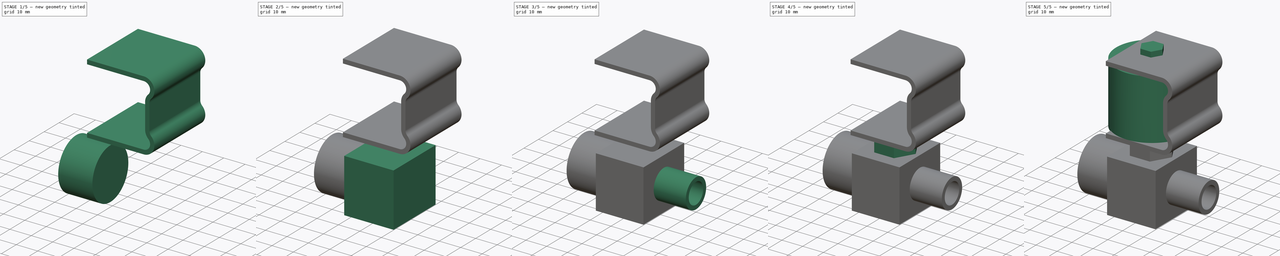
[diagram: build sequence overview — one tinted view per stage of 5, left to right]
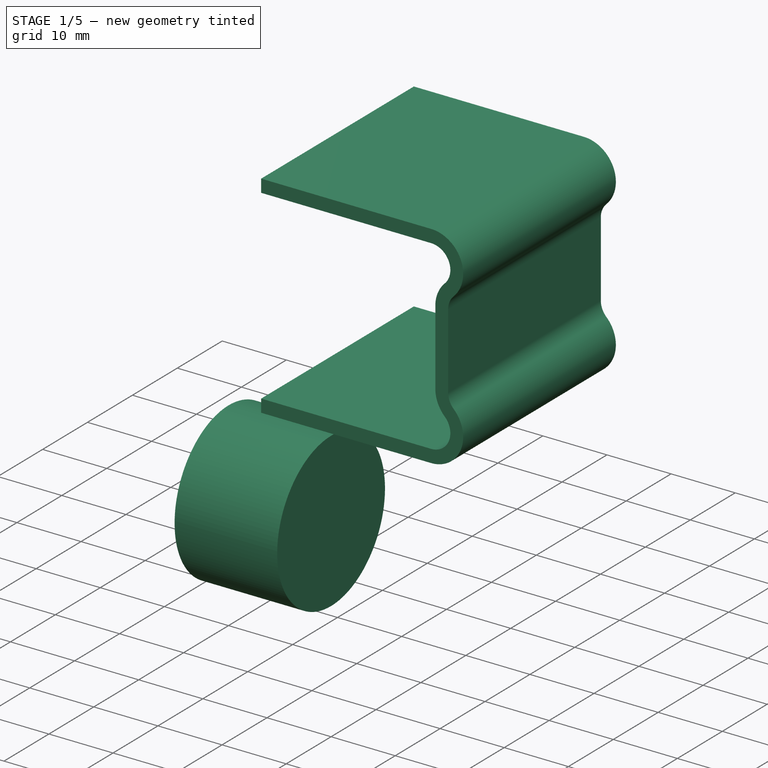
[diagram: stage 1 of 5 — iso view after this stage's code; geometry added in this stage tinted green]
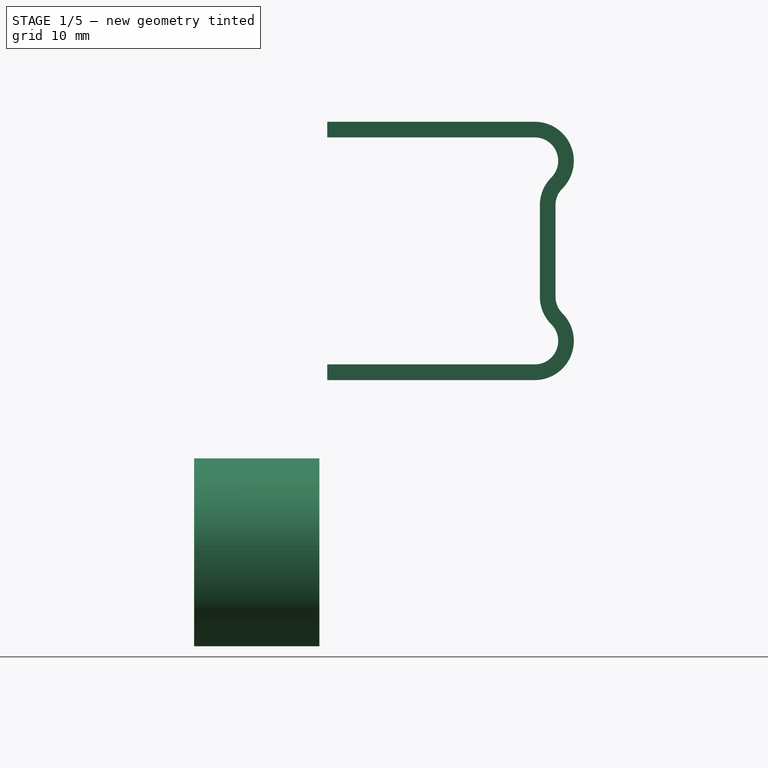
[diagram: stage 1 of 5 — front view after this stage's code; geometry added in this stage tinted green]
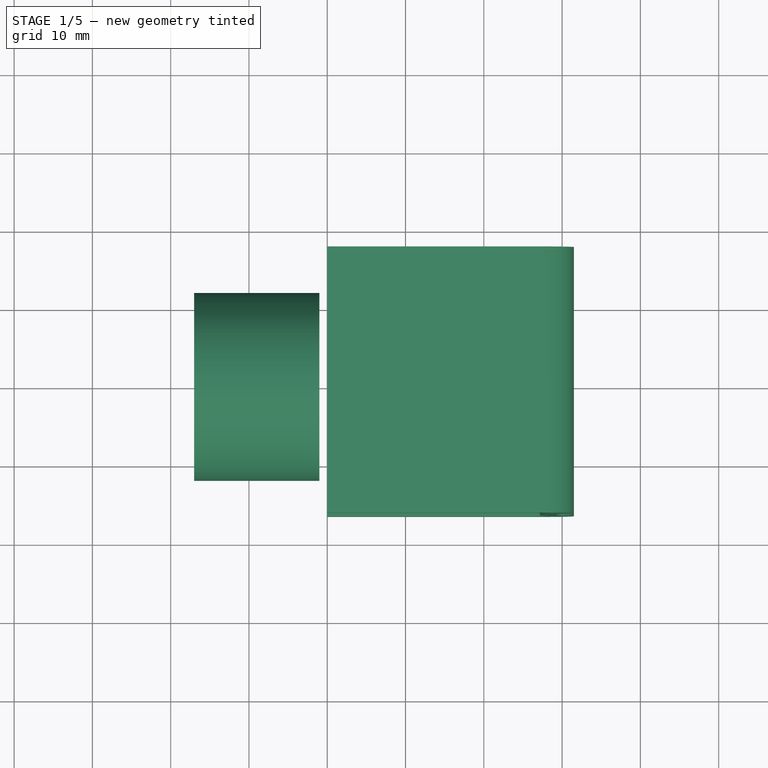
[diagram: stage 1 of 5 — top view after this stage's code; geometry added in this stage tinted green]
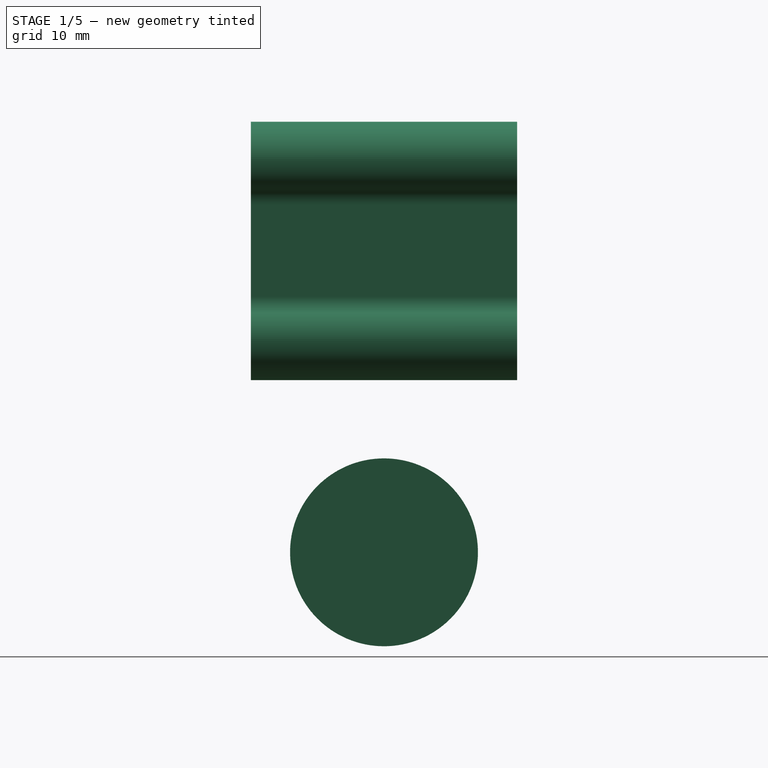
[diagram: stage 1 of 5 — right view after this stage's code; geometry added in this stage tinted green]
FCSTD DOCUMENT  (FreeCAD 0.16R6712 (Git))
Label: fl_205_cut_of_solenoid
License: All rights reserved
LicenseURL: http://en.wikipedia.org/wiki/All_rights_reserved
objects: Sketcher::SketchObject×5, PartDesign::Pad×5, Part::Cylinder×4, Part::MultiFuse×3, Part::Cut×2, Part::Box×1
note: 25 computed .brp shape members not serialized (recipe doc carries the construction recipe); baked Part::Feature solids carry a one-line shape summary decoded from their .brp

FEATURE [Part::Cylinder] Cylinder
  Angle = 360
  Height = 16
  Placement = pos=(-27,0,0) rot=(0,1,0;1.5708rad)
  Radius = 12
FEATURE [Part::Cylinder] Cylinder002
  Angle = 360
  Height = 16
  Placement = pos=(-27,0,0) rot=(0,1,0;1.5708rad)
  Radius = 7.5
FEATURE [PartDesign::Pad] Pad004
  Length = 34
  Length2 = 100
  Placement = pos=(0,17,0) rot=(-1,0,0;4.71239rad)
  Sketch = -> Sketch004
  Type = 0
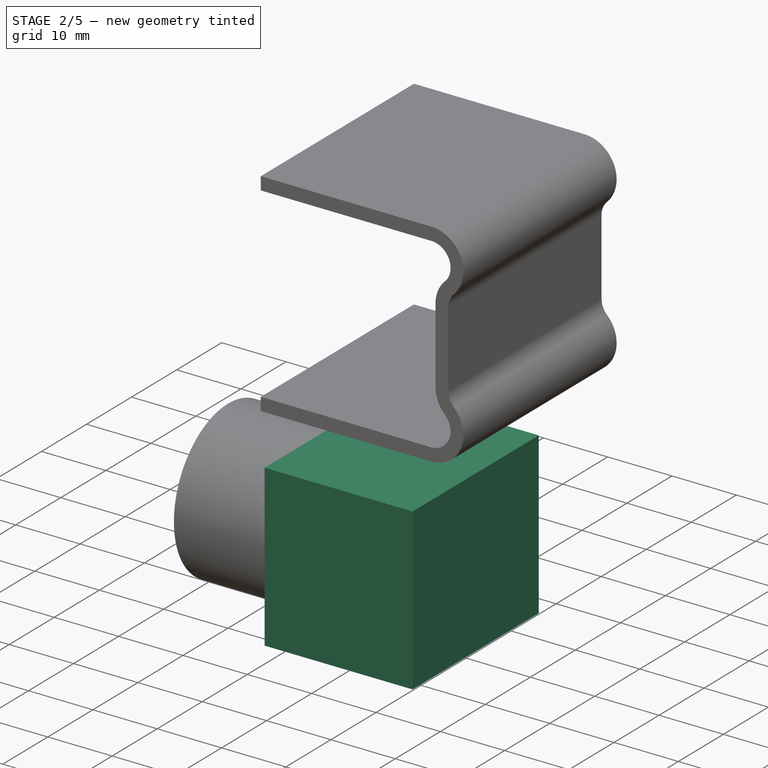
[diagram: stage 2 of 5 — iso view after this stage's code; geometry added in this stage tinted green]
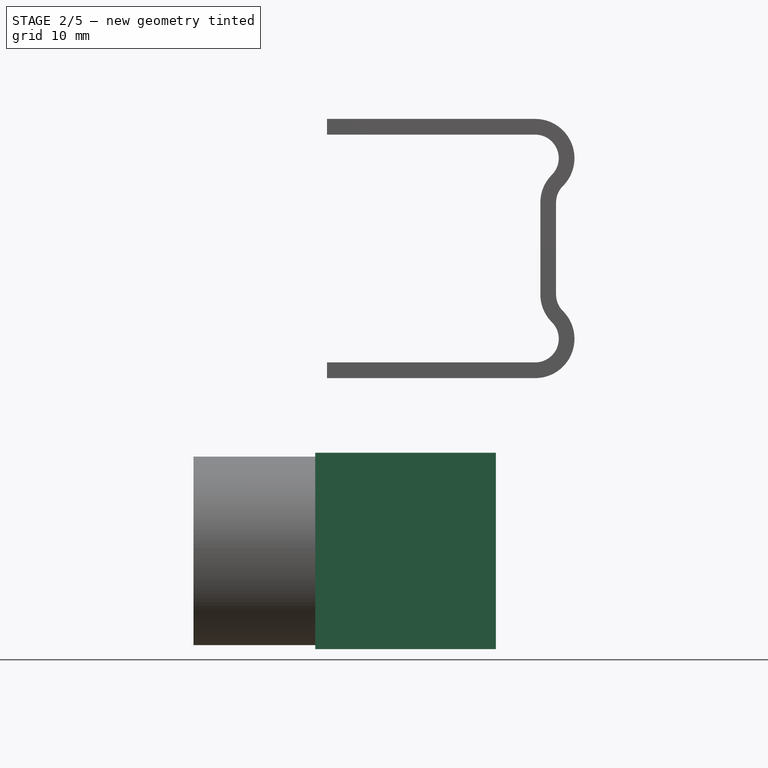
[diagram: stage 2 of 5 — front view after this stage's code; geometry added in this stage tinted green]
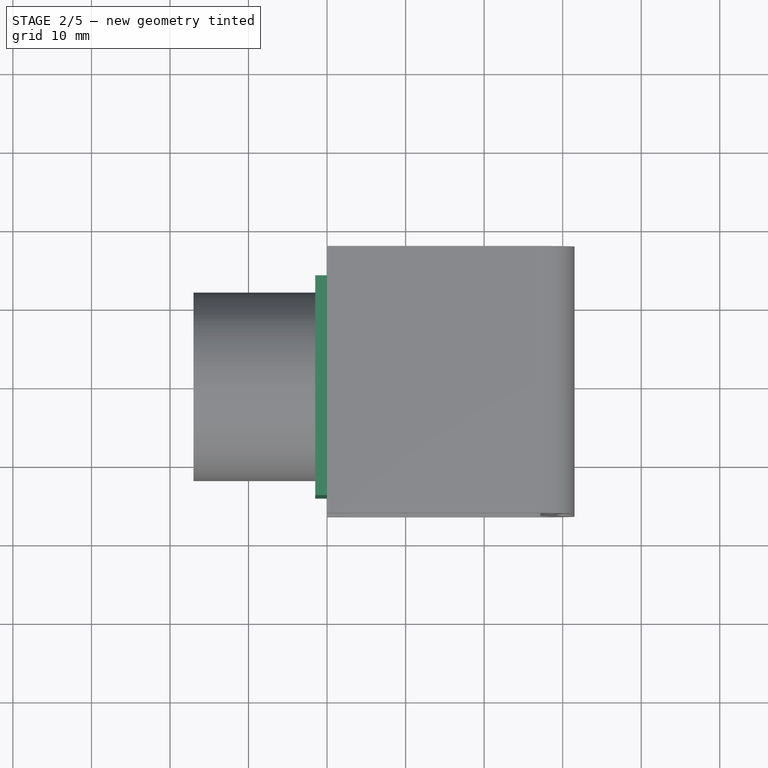
[diagram: stage 2 of 5 — top view after this stage's code; geometry added in this stage tinted green]
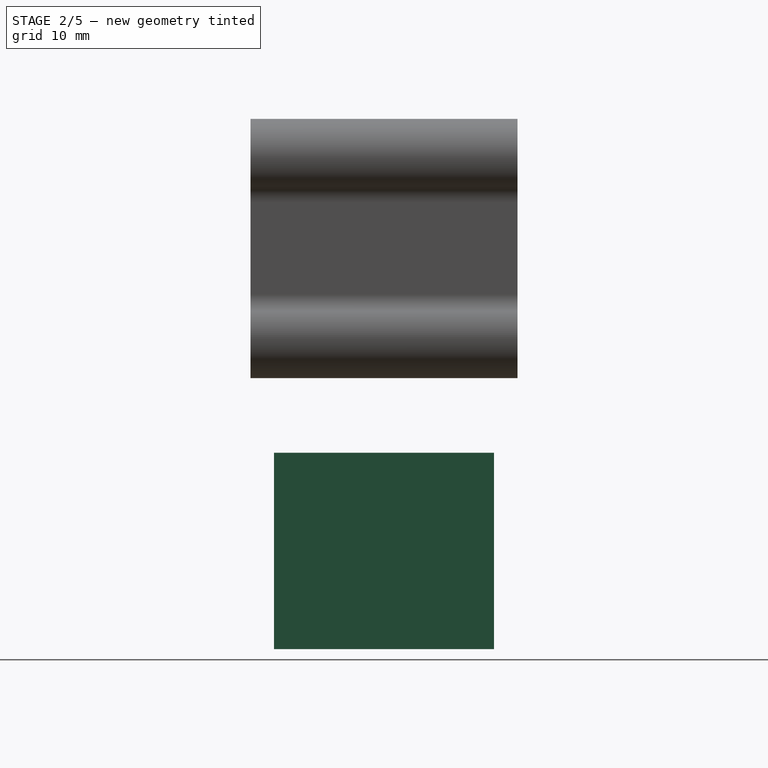
[diagram: stage 2 of 5 — right view after this stage's code; geometry added in this stage tinted green]
FEATURE [Part::Box] Box  label="Cube"
  Height = 25
  Length = 23
  Placement = pos=(-11.5,-14,-12.5) rot=(0,0,1;0rad)
  Width = 28
FEATURE [Part::Cut] Cut
  Base = -> Cylinder
  Tool = -> Cylinder002
FEATURE [Part::MultiFuse] Fusion
  Shapes = -> [Box,Cut]
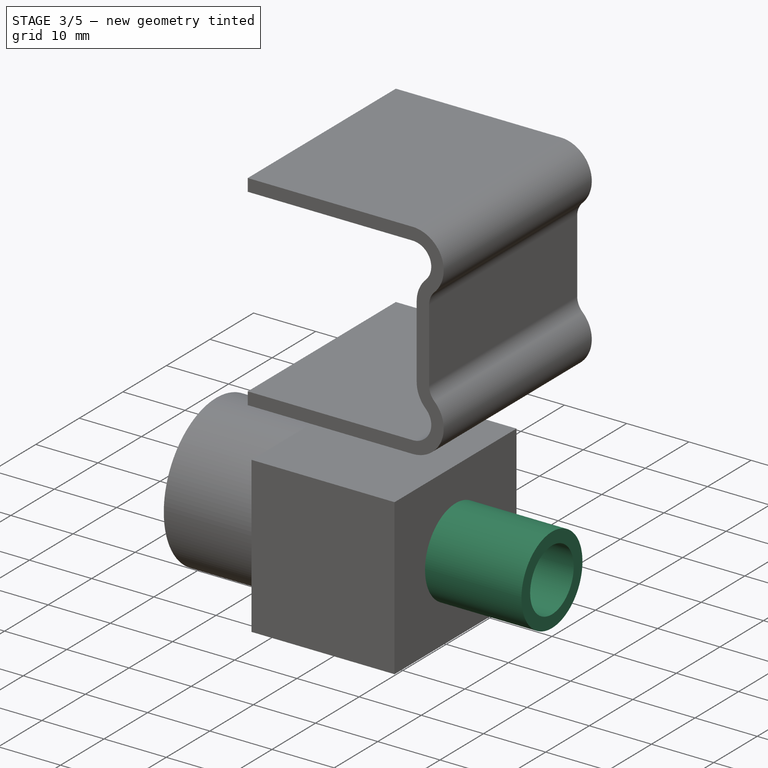
[diagram: stage 3 of 5 — iso view after this stage's code; geometry added in this stage tinted green]
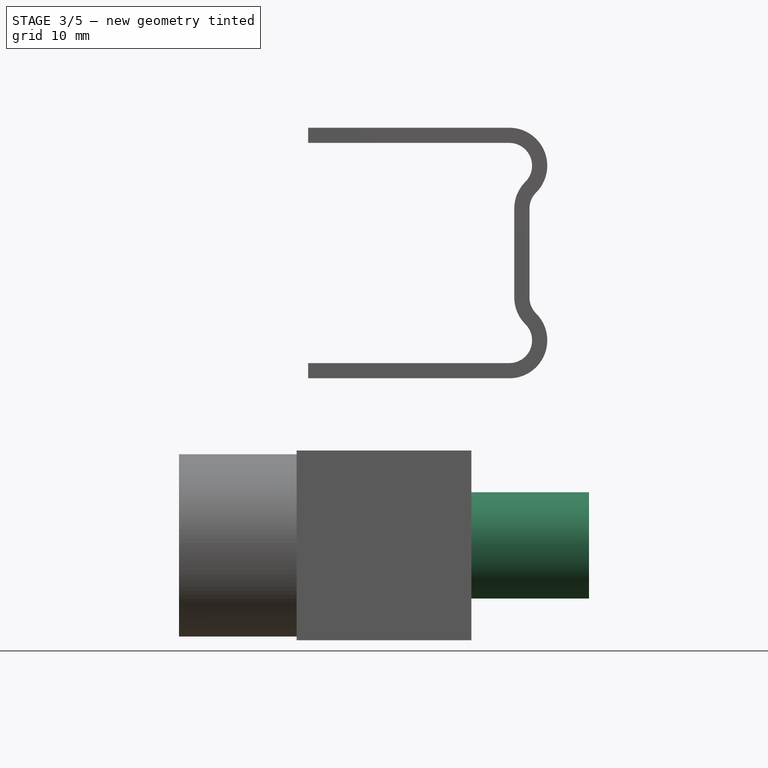
[diagram: stage 3 of 5 — front view after this stage's code; geometry added in this stage tinted green]
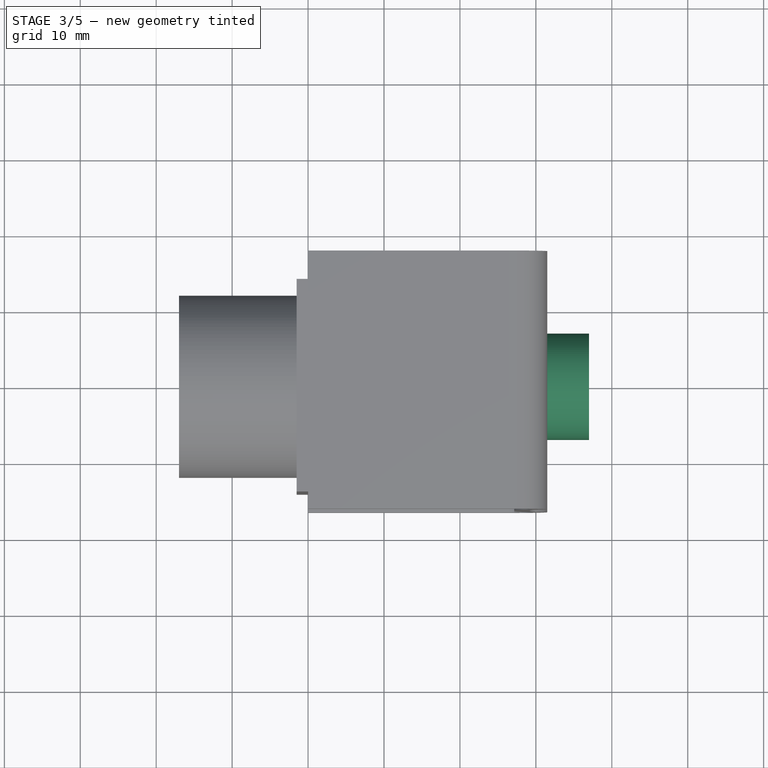
[diagram: stage 3 of 5 — top view after this stage's code; geometry added in this stage tinted green]
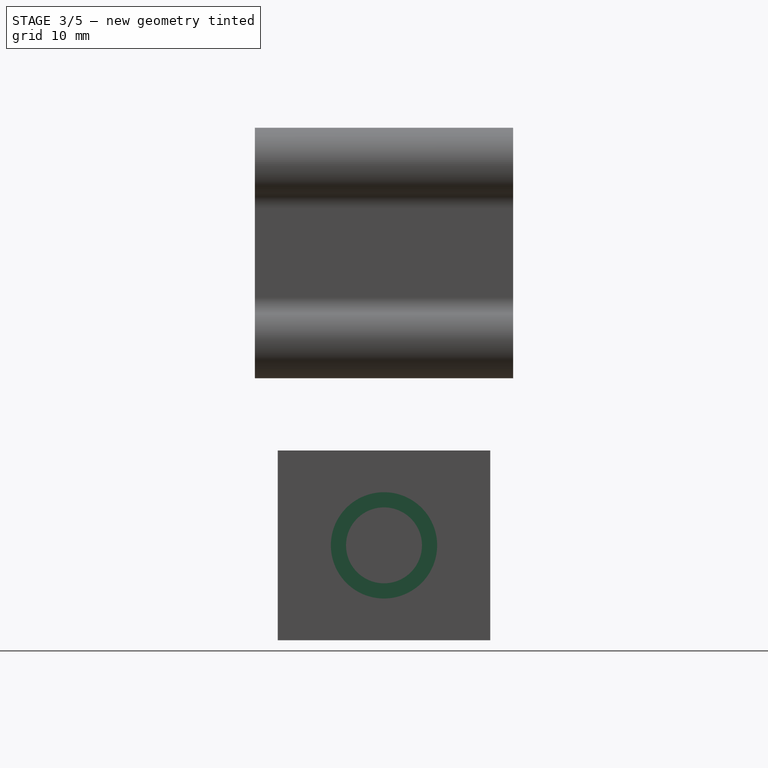
[diagram: stage 3 of 5 — right view after this stage's code; geometry added in this stage tinted green]
FEATURE [Part::Cylinder] Cylinder001
  Angle = 360
  Height = 16
  Placement = pos=(11,0,0) rot=(0,1,0;1.5708rad)
  Radius = 5
FEATURE [Part::Cylinder] Cylinder003
  Angle = 360
  Height = 16
  Placement = pos=(11,0,0) rot=(0,1,0;1.5708rad)
  Radius = 7
FEATURE [Part::Cut] Cut001
  Base = -> Cylinder003
  Tool = -> Cylinder001
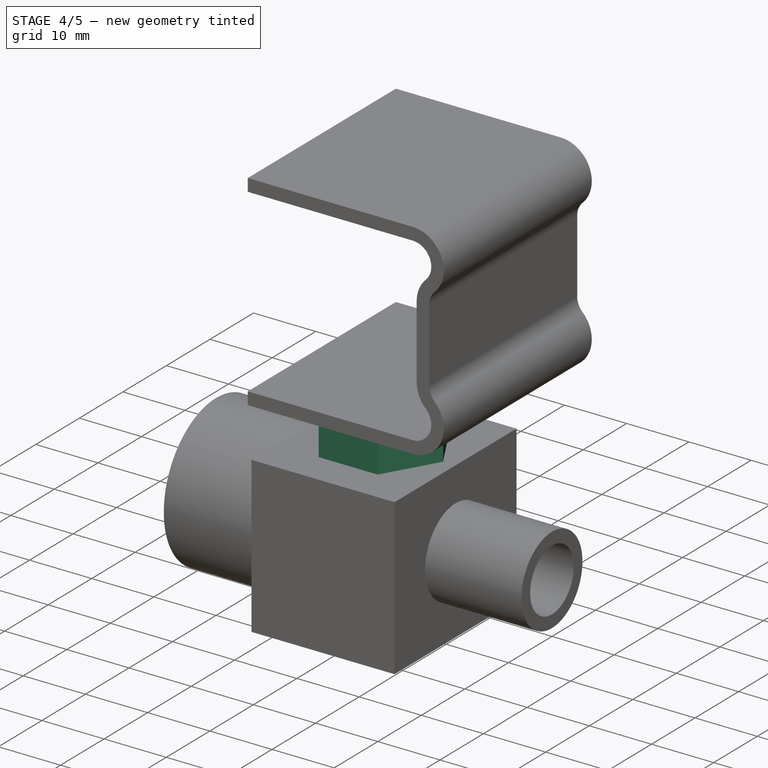
[diagram: stage 4 of 5 — iso view after this stage's code; geometry added in this stage tinted green]
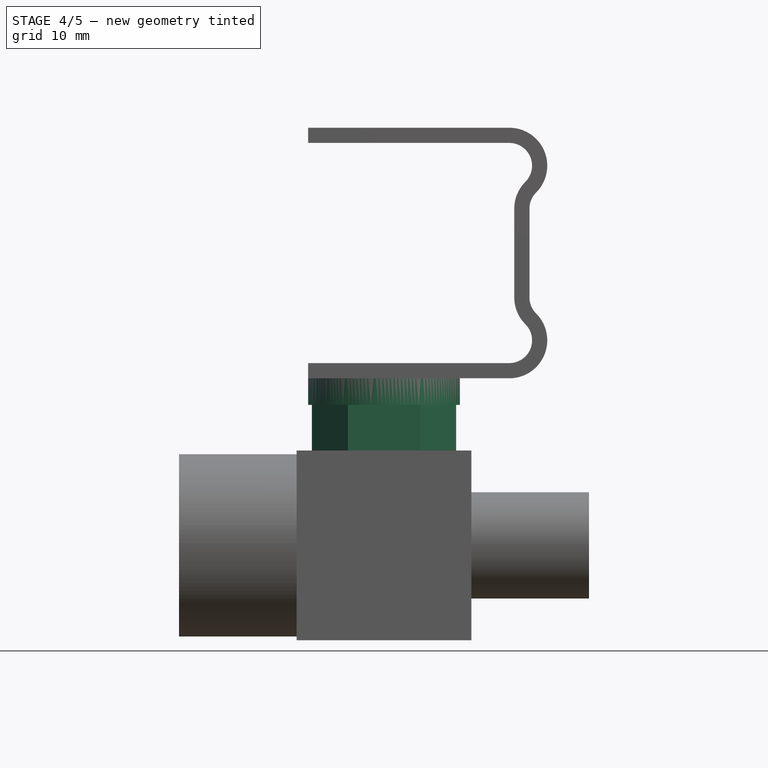
[diagram: stage 4 of 5 — front view after this stage's code; geometry added in this stage tinted green]
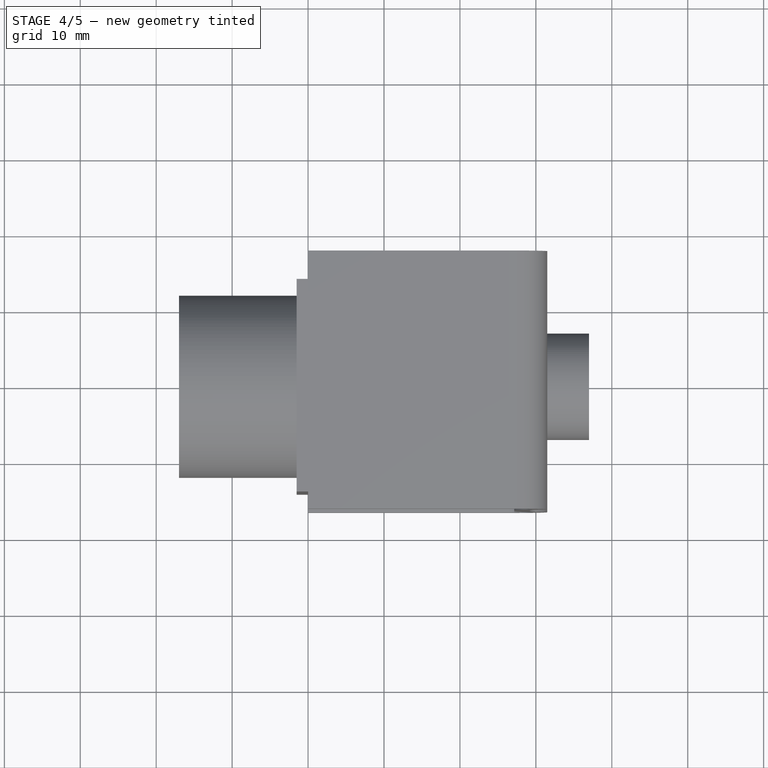
[diagram: stage 4 of 5 — top view after this stage's code; geometry added in this stage tinted green]
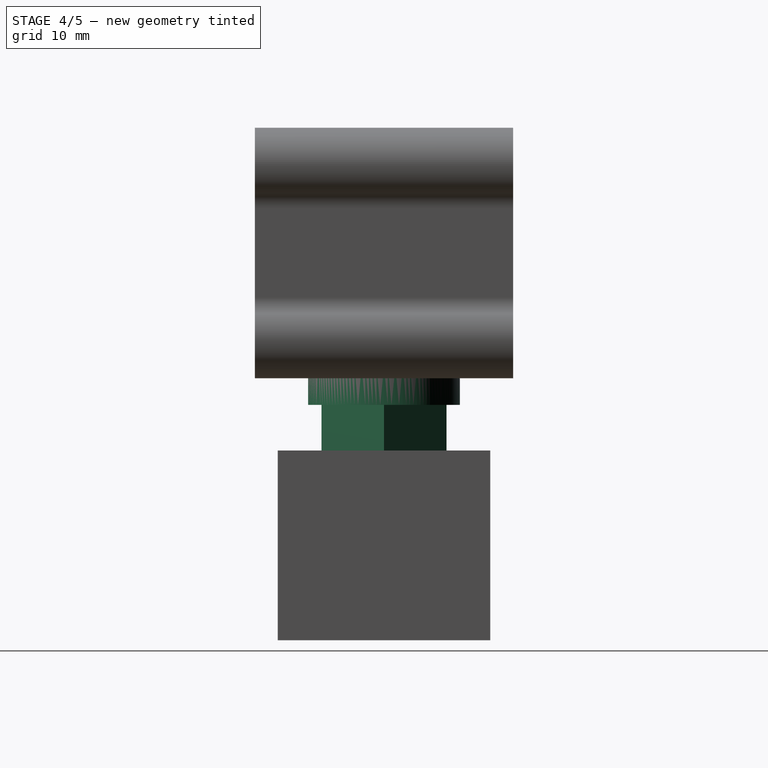
[diagram: stage 4 of 5 — right view after this stage's code; geometry added in this stage tinted green]
FEATURE [Part::MultiFuse] Fusion001
  Shapes = -> [Fusion,Cut001]
FEATURE [Sketcher::SketchObject] Sketch
  Placement = pos=(0,0,12.5) rot=(0,0,1;0rad)
  Support = -> Fusion001 [Face4]
  sketch-geometry (7):
    g0: LineSegment StartX=4.75 StartY=8.22724 StartZ=0 EndX=-4.75 EndY=8.22724 EndZ=0
    g1: LineSegment StartX=-4.75 StartY=8.22724 StartZ=0 EndX=-9.5 EndY=3e-12 EndZ=0
    g2: LineSegment StartX=-9.5 StartY=3e-12 StartZ=0 EndX=-4.75 EndY=-8.22724 EndZ=0
    g3: LineSegment StartX=-4.75 StartY=-8.22724 StartZ=0 EndX=4.75 EndY=-8.22724 EndZ=0
    g4: LineSegment StartX=4.75 StartY=-8.22724 StartZ=0 EndX=9.5 EndY=3e-12 EndZ=0
    g5: LineSegment StartX=9.5 StartY=3e-12 StartZ=0 EndX=4.75 EndY=8.22724 EndZ=0
    g6: Circle [constr] CenterX=0 CenterY=0 CenterZ=0 NormalX=0 NormalY=0 NormalZ=1 Radius=9.5
  constraints (16):
    c: Coincident(g0,g1)
    c: Coincident(g1,g2)
    c: Coincident(g2,g3)
    c: Coincident(g3,g4)
    c: Coincident(g4,g5)
    c: Coincident(g5,g0)
    c: Equal(g0, g1-g5) x5
    c: PointOnObject(g0,g6)
    c: PointOnObject(g1,g6)
    c: PointOnObject(g2,g6)
    c: PointOnObject(g3,g6)
    c: PointOnObject(g4,g6)
    c: PointOnObject(g5,g6)
    c: Coincident(g6,g-1)
    c: Horizontal(g0)
    c: Radius(g6) = 9.5
FEATURE [PartDesign::Pad] Pad
  Length = 6
  Length2 = 100
  Sketch = -> Sketch
  Type = 0
FEATURE [Sketcher::SketchObject] Sketch001
  Placement = pos=(0,0,18.5) rot=(0,0,1;0rad)
  Support = -> Pad [Face1]
  sketch-geometry (1):
    g0: Circle CenterX=0 CenterY=0 CenterZ=0 NormalX=0 NormalY=0 NormalZ=1 Radius=10
  constraints (2):
    c: Coincident(g0,g-1)
    c: Radius(g0) = 10
FEATURE [PartDesign::Pad] Pad001
  Length = 5
  Length2 = 100
  Sketch = -> Sketch001
  Type = 0
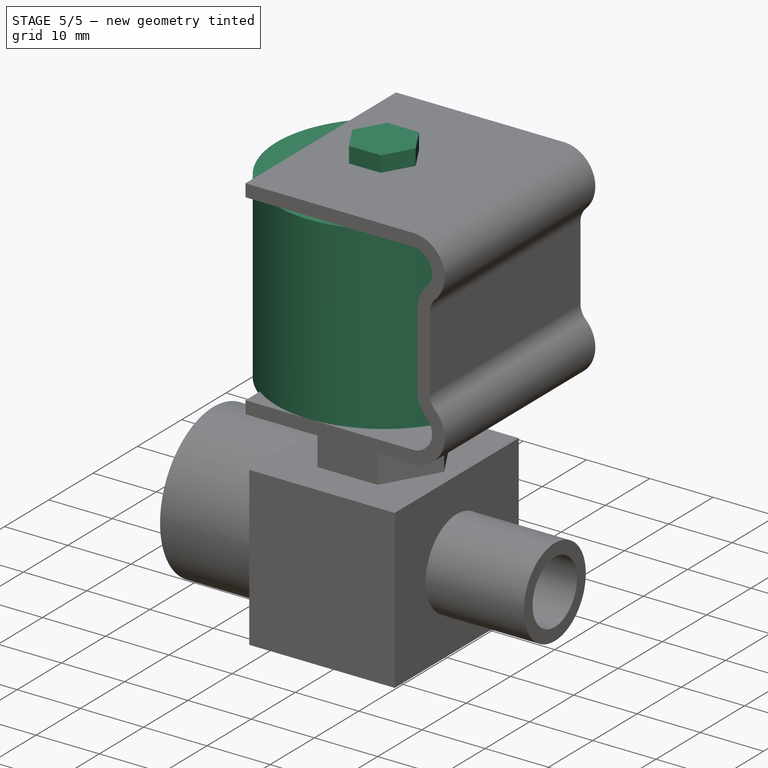
[diagram: stage 5 of 5 — iso view after this stage's code; geometry added in this stage tinted green]
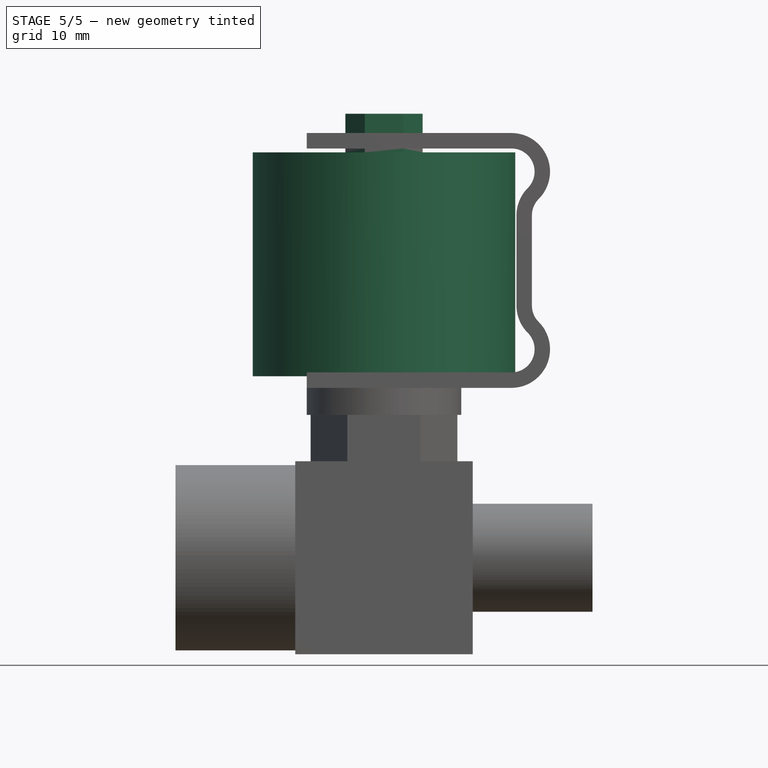
[diagram: stage 5 of 5 — front view after this stage's code; geometry added in this stage tinted green]
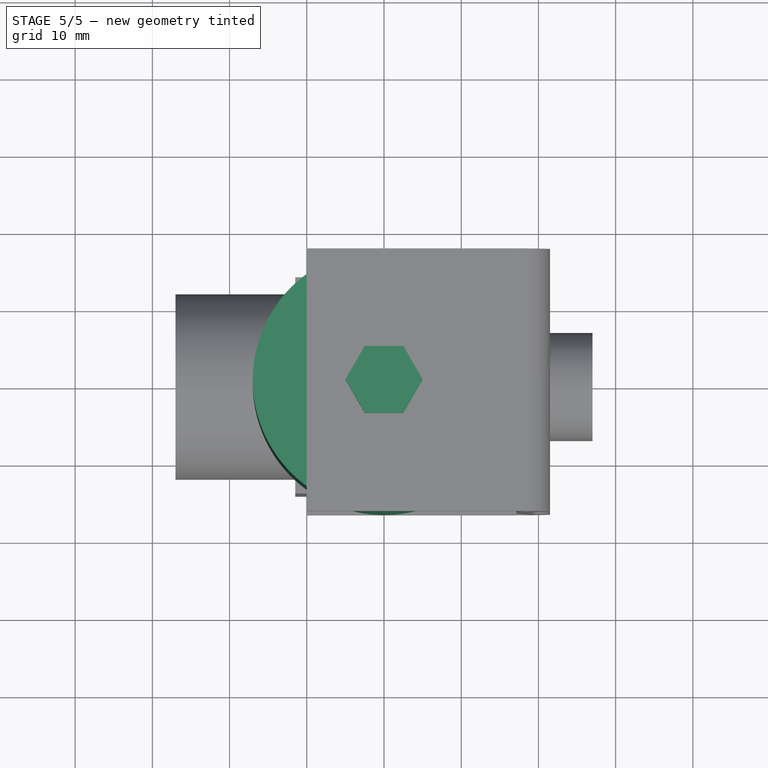
[diagram: stage 5 of 5 — top view after this stage's code; geometry added in this stage tinted green]
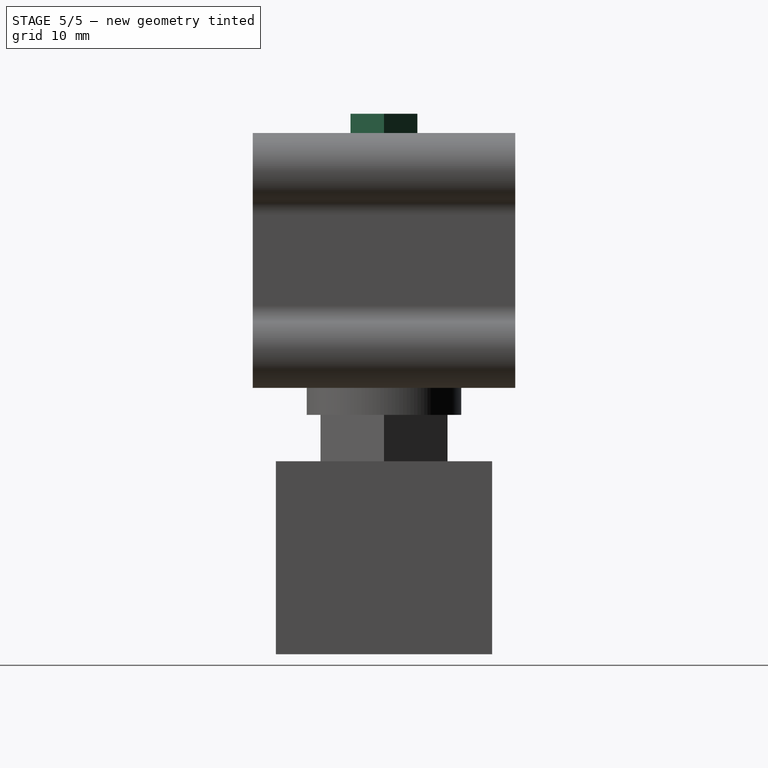
[diagram: stage 5 of 5 — right view after this stage's code; geometry added in this stage tinted green]
FEATURE [Sketcher::SketchObject] Sketch002
  Placement = pos=(0,0,23.5) rot=(0,0,1;0rad)
  Support = -> Pad001 [Face21]
  sketch-geometry (1):
    g0: Circle CenterX=0 CenterY=0 CenterZ=0 NormalX=0 NormalY=0 NormalZ=1 Radius=17
  constraints (2):
    c: Coincident(g0,g-1)
    c: Radius(g0) = 17
FEATURE [PartDesign::Pad] Pad002
  Length = 29
  Length2 = 100
  Sketch = -> Sketch002
  Type = 0
FEATURE [Sketcher::SketchObject] Sketch004
  Placement = pos=(0,17,0) rot=(-1,0,0;4.71239rad)
  sketch-geometry (24):
    g0: LineSegment StartX=-10 StartY=55 StartZ=0 EndX=16.5 EndY=55 EndZ=0
    g1: LineSegment StartX=-10 StartY=55 StartZ=0 EndX=-10 EndY=53 EndZ=0
    g2: LineSegment StartX=-10 StartY=53 StartZ=0 EndX=16.5 EndY=53 EndZ=0
    g3: LineSegment [constr] StartX=-10 StartY=53 StartZ=0 EndX=-10 EndY=24 EndZ=0
    g4: LineSegment StartX=-10 StartY=24 StartZ=0 EndX=16.5 EndY=24 EndZ=0
    g5: LineSegment StartX=-10 StartY=24 StartZ=0 EndX=-10 EndY=22 EndZ=0
    g6: LineSegment StartX=-10 StartY=22 StartZ=0 EndX=16.5 EndY=22 EndZ=0
    g7: LineSegment [constr] StartX=16.5 StartY=53 StartZ=0 EndX=16.5 EndY=50 EndZ=0
    g8: LineSegment [constr] StartX=16.5 StartY=24 StartZ=0 EndX=16.5 EndY=27 EndZ=0
    g9: LineSegment [constr] StartX=16.5 StartY=50 StartZ=0 EndX=22.1569 EndY=44.3431 EndZ=0
    g10: LineSegment [constr] StartX=16.5 StartY=27 StartZ=0 EndX=22.1569 EndY=32.6569 EndZ=0
    g11: ArcOfCircle CenterX=16.5 CenterY=50 CenterZ=0 NormalX=0 NormalY=0 NormalZ=1 Radius=5 StartAngle=5.49779 EndAngle=7.85398
    g12: ArcOfCircle CenterX=16.5 CenterY=50 CenterZ=0 NormalX=0 NormalY=0 NormalZ=1 Radius=3 StartAngle=5.49779 EndAngle=7.85398
    g13: ArcOfCircle CenterX=16.5 CenterY=27 CenterZ=0 NormalX=0 NormalY=0 NormalZ=1 Radius=5 StartAngle=4.71239 EndAngle=7.06858
    g14: ArcOfCircle CenterX=16.5 CenterY=27 CenterZ=0 NormalX=0 NormalY=0 NormalZ=1 Radius=3 StartAngle=4.71239 EndAngle=7.06858
    g15: LineSegment StartX=17.1569 StartY=44.3431 StartZ=0 EndX=17.1569 EndY=32.6569 EndZ=0
    g16: LineSegment StartX=19.1569 StartY=44.3431 StartZ=0 EndX=19.1569 EndY=32.6569 EndZ=0
    g17: LineSegment [constr] StartX=17.1569 StartY=44.3431 StartZ=0 EndX=19.1569 EndY=44.3431 EndZ=0
    g18: ArcOfCircle CenterX=22.1569 CenterY=44.3431 CenterZ=0 NormalX=0 NormalY=0 NormalZ=1 Radius=5 StartAngle=2.35619 EndAngle=3.14159
    g19: ArcOfCircle CenterX=22.1569 CenterY=44.3431 CenterZ=0 NormalX=0 NormalY=0 NormalZ=1 Radius=3 StartAngle=2.35619 EndAngle=3.14159
    g20: LineSegment [constr] StartX=19.1569 StartY=44.3431 StartZ=0 EndX=22.1569 EndY=44.3431 EndZ=0
    g21: LineSegment [constr] StartX=19.1569 StartY=32.6569 StartZ=0 EndX=22.1569 EndY=32.6569 EndZ=0
    g22: ArcOfCircle CenterX=22.1457 CenterY=32.6522 CenterZ=0 NormalX=0 NormalY=0 NormalZ=1 Radius=2.98883 StartAngle=3.14004 EndAngle=3.92854
    g23: ArcOfCircle CenterX=22.1569 CenterY=32.6569 CenterZ=0 NormalX=0 NormalY=0 NormalZ=1 Radius=5 StartAngle=3.14159 EndAngle=3.92699
  constraints (70):
    c: Horizontal(g0)
    c: Coincident(g2,g1)
    c: Horizontal(g2)
    c: Coincident(g3,g1)
    c: Vertical(g3)
    c: Coincident(g4,g3)
    c: Horizontal(g4)
    c: Coincident(g5,g3)
    c: Vertical(g5)
    c: Coincident(g6,g5)
    c: Horizontal(g6)
    c: Equal(g6,g4)
    c: Equal(g4,g2)
    c: Equal(g2,g0)
    c: Equal(g1,g5)
    c: Vertical(g1)
    c: Coincident(g0,g1)
    c: Coincident(g7,g2)
    c: Vertical(g7)
    c: Coincident(g8,g4)
    c: Equal(g8,g7)
    c: Vertical(g8)
    c: Coincident(g9,g7)
    c: Coincident(g10,g8)
    c: Angle(g9,g7) = 2.35619
    c: Angle(g8,g10) = 2.35619
    c: Equal(g10,g9)
    c: DistanceY(g-1,g6) = 22
    c: DistanceY(g5,g5) = 2
    c: DistanceY(g3,g3) = 29
    c: DistanceY(g7,g7) = 3
    c: Coincident(g11,g7)
    c: Coincident(g11,g0)
    c: PointOnObject(g11,g9)
    c: Coincident(g12,g7)
    c: Coincident(g12,g2)
    c: PointOnObject(g12,g9)
    c: Coincident(g13,g8)
    c: Coincident(g13,g6)
    c: PointOnObject(g13,g10)
    c: Coincident(g14,g8)
    c: Coincident(g14,g4)
    c: PointOnObject(g14,g10)
    c: Distance(g10) = 8
    c: DistanceX(g5,g-1) = 10
    c: Vertical(g15)
    c: Vertical(g16)
    c: Equal(g15,g16)
    c: Coincident(g17,g15)
    c: Coincident(g17,g16)
    c: Horizontal(g17)
    c: Coincident(g18,g9)
    c: Coincident(g18,g12)
    c: Coincident(g18,g15)
    c: DistanceX(g17,g17) = 2
    c: Coincident(g19,g9)
    c: Coincident(g19,g11)
    c: Coincident(g19,g16)
    c: Coincident(g20,g16)
    c: Horizontal(g20)
    c: Coincident(g9,g20)
    c: Coincident(g21,g16)
    c: Coincident(g21,g10)
    c: Horizontal(g21)
    c: Coincident(g22,g16)
    c: Coincident(g22,g13)
    c: Coincident(g23,g10)
    c: Coincident(g23,g15)
    c: Coincident(g23,g14)
    c: DistanceX(g0,g0) = 26.5
FEATURE [Sketcher::SketchObject] Sketch003
  Placement = pos=(0,0,52.5) rot=(0,0,1;0rad)
  Support = -> Pad002 [Face25]
  sketch-geometry (7):
    g0: LineSegment StartX=2.5 StartY=4.33013 StartZ=0 EndX=-2.5 EndY=4.33013 EndZ=0
    g1: LineSegment StartX=-2.5 StartY=4.33013 StartZ=0 EndX=-5 EndY=0 EndZ=0
    g2: LineSegment StartX=-5 StartY=0 StartZ=0 EndX=-2.5 EndY=-4.33013 EndZ=0
    g3: LineSegment StartX=-2.5 StartY=-4.33013 StartZ=0 EndX=2.5 EndY=-4.33013 EndZ=0
    g4: LineSegment StartX=2.5 StartY=-4.33013 StartZ=0 EndX=5 EndY=0 EndZ=0
    g5: LineSegment StartX=5 StartY=0 StartZ=0 EndX=2.5 EndY=4.33013 EndZ=0
    g6: Circle [constr] CenterX=0 CenterY=0 CenterZ=0 NormalX=0 NormalY=0 NormalZ=1 Radius=5
  constraints (16):
    c: Coincident(g0,g1)
    c: Coincident(g1,g2)
    c: Coincident(g2,g3)
    c: Coincident(g3,g4)
    c: Coincident(g4,g5)
    c: Coincident(g5,g0)
    c: Equal(g0, g1-g5) x5
    c: PointOnObject(g0,g6)
    c: PointOnObject(g1,g6)
    c: PointOnObject(g2,g6)
    c: PointOnObject(g3,g6)
    c: PointOnObject(g4,g6)
    c: PointOnObject(g5,g6)
    c: Coincident(g6,g-1)
    c: Horizontal(g0)
    c: Radius(g6) = 5
FEATURE [PartDesign::Pad] Pad003
  Length = 5
  Length2 = 100
  Sketch = -> Sketch003
  Type = 0
FEATURE [Part::MultiFuse] Fusion002
  Shapes = -> [Pad003,Pad004]
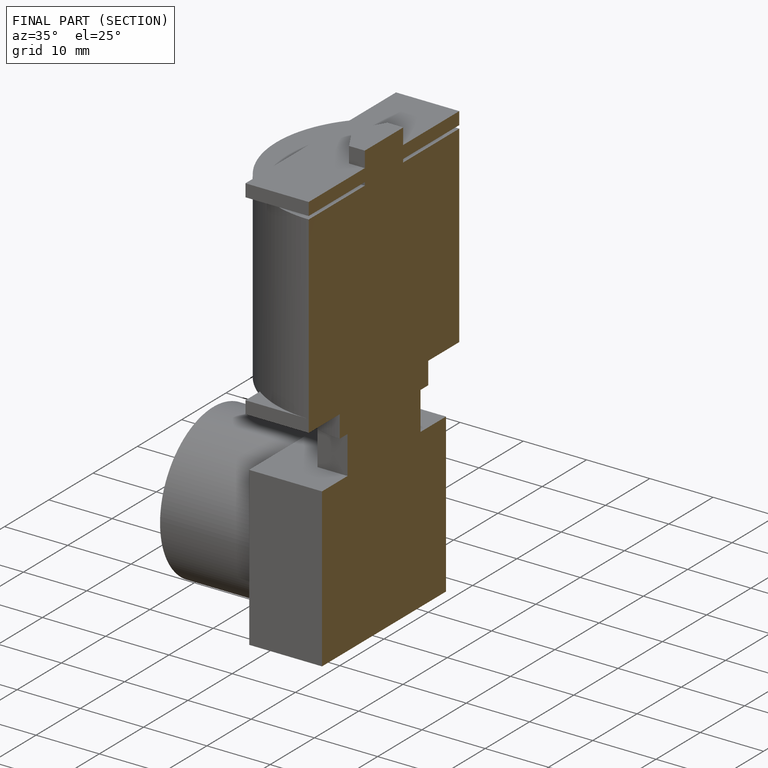
[diagram: finished part — half-section view (interior)]
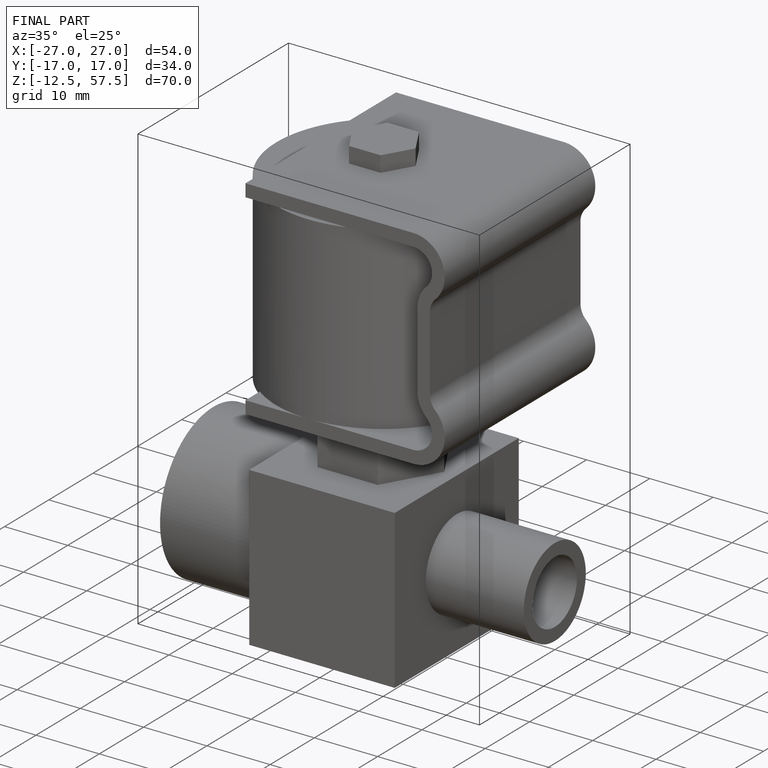
[diagram: finished part — iso view with bounding-box wireframe]
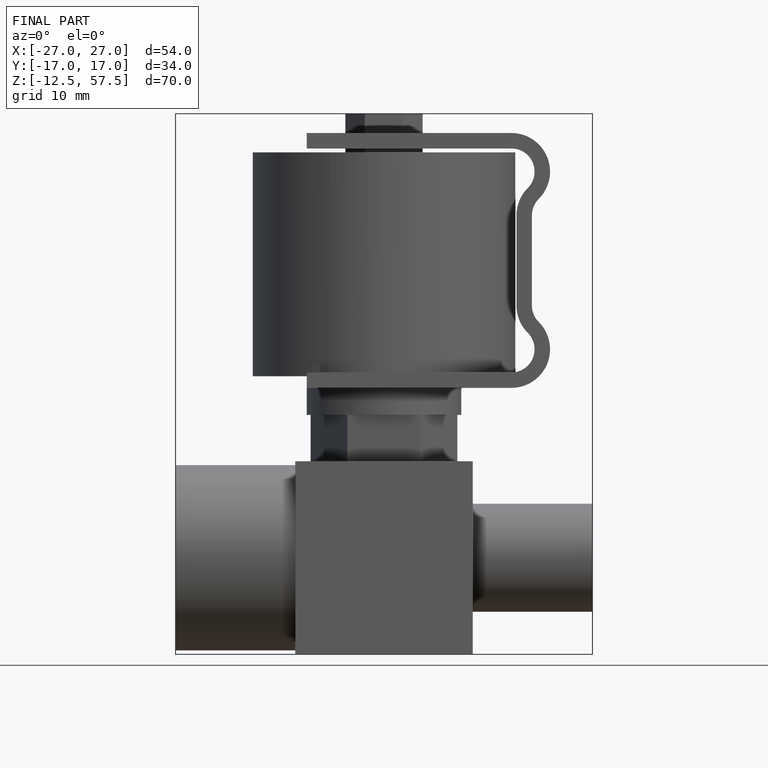
[diagram: finished part — front view with bounding-box wireframe]
